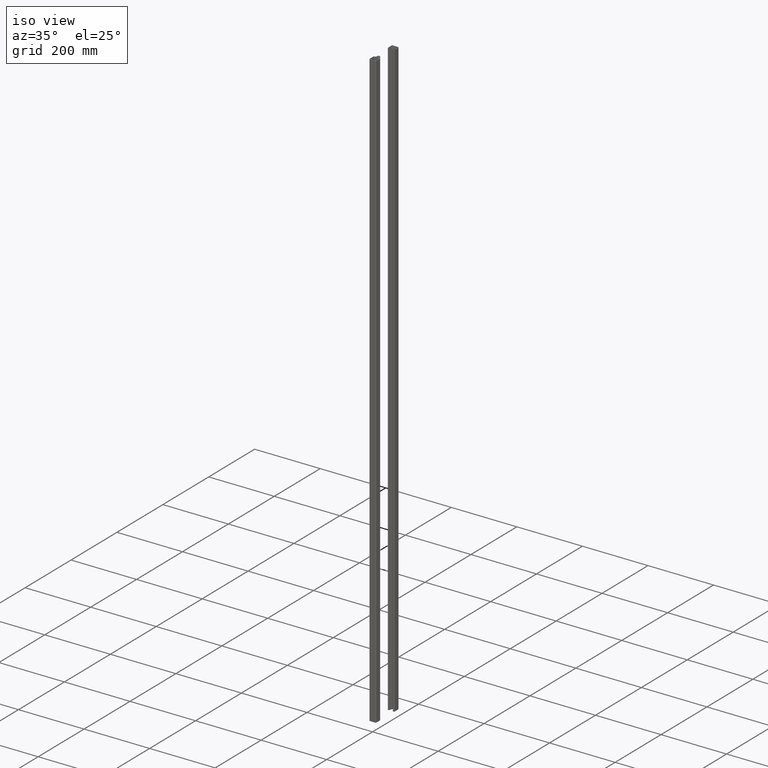
[diagram: clean part render]
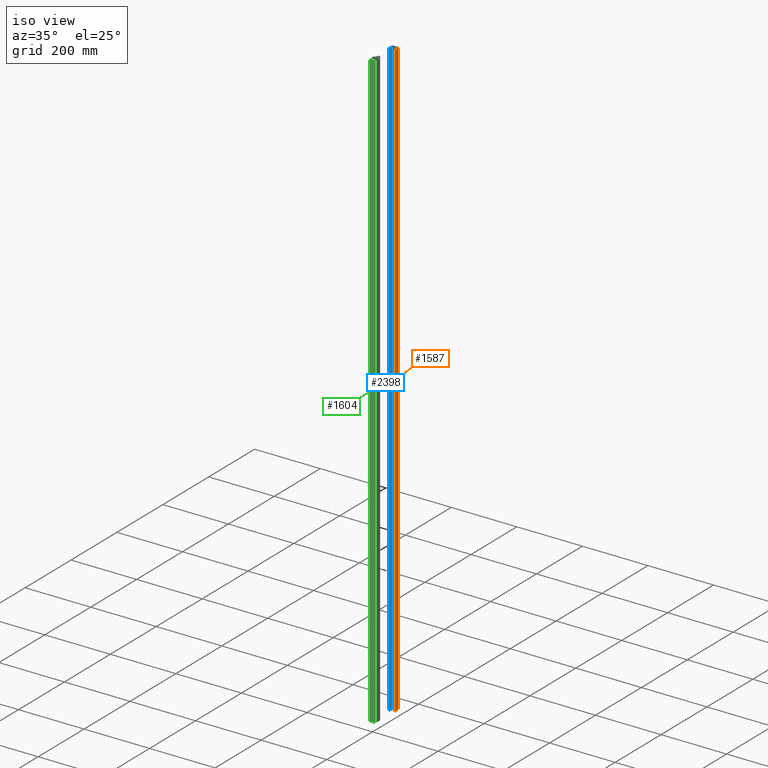
[diagram: same view with three faces highlighted in distinct colors, each labeled with its STEP entity id]
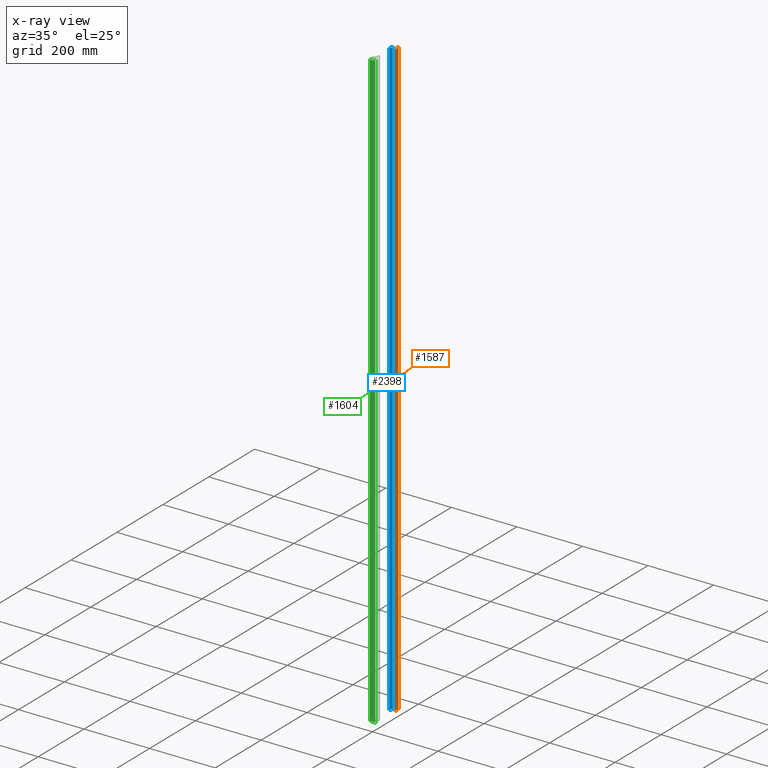
[diagram: x-ray of the same camera — body ghosted, the three highlighted faces saturated]
A machine part, iso view with three faces highlighted in distinct colors.
The next image is the same camera in x-ray (body ghosted, the three faces saturated) — at least one of them is partly hidden behind the body in this view.
Their STEP definitions:

[orange] entity #1587 — the highlighted planar face has unit normal (1, -0, 0).
#115 = PLANE ( 'NONE',  #2456 ) ;
#242 = ORIENTED_EDGE ( 'NONE', *, *, #848, .F. ) ;
#312 = CARTESIAN_POINT ( 'NONE',  ( 10.30000000000000071, 18.00000000000000355, -1825.000000000000000 ) ) ;
#400 = EDGE_CURVE ( 'NONE', #912, #1763, #1383, .T. ) ;
#407 = CARTESIAN_POINT ( 'NONE',  ( 10.30000000000000071, 2.000000000000000000, -1825.000000000000000 ) ) ;
#454 = LINE ( 'NONE', #1557, #961 ) ;
#504 = VECTOR ( 'NONE', #1680, 1000.000000000000000 ) ;
#532 = VERTEX_POINT ( 'NONE', #312 ) ;
#598 = LINE ( 'NONE', #2133, #2364 ) ;
#848 = EDGE_CURVE ( 'NONE', #1763, #1404, #1472, .T. ) ;
#895 = CARTESIAN_POINT ( 'NONE',  ( 10.30000000000000071, 2.000000000000000000, -1825.000000000000000 ) ) ;
#898 = DIRECTION ( 'NONE',  ( 1.000000000000000000, 0.000000000000000000, -0.000000000000000000 ) ) ;
#912 = VERTEX_POINT ( 'NONE', #895 ) ;
#961 = VECTOR ( 'NONE', #1234, 1000.000000000000000 ) ;
#986 = DIRECTION ( 'NONE',  ( -0.000000000000000000, 1.000000000000000000, -0.000000000000000000 ) ) ;
#1234 = DIRECTION ( 'NONE',  ( 0.000000000000000000, 0.000000000000000000, 1.000000000000000000 ) ) ;
#1266 = ORIENTED_EDGE ( 'NONE', *, *, #1463, .T. ) ;
#1276 = ORIENTED_EDGE ( 'NONE', *, *, #400, .F. ) ;
#1383 = LINE ( 'NONE', #407, #504 ) ;
#1404 = VERTEX_POINT ( 'NONE', #1425 ) ;
#1425 = CARTESIAN_POINT ( 'NONE',  ( 10.30000000000000071, 18.00000000000000355, 0.000000000000000000 ) ) ;
#1434 = DIRECTION ( 'NONE',  ( -0.000000000000000000, 1.000000000000000000, -0.000000000000000000 ) ) ;
#1463 = EDGE_CURVE ( 'NONE', #912, #532, #598, .T. ) ;
#1472 = LINE ( 'NONE', #2388, #1677 ) ;
#1557 = CARTESIAN_POINT ( 'NONE',  ( 10.30000000000000071, 18.00000000000000355, -1825.000000000000000 ) ) ;
#1587 = ADVANCED_FACE ( 'NONE', ( #1871 ), #115, .T. ) ;
#1677 = VECTOR ( 'NONE', #1434, 1000.000000000000000 ) ;
#1680 = DIRECTION ( 'NONE',  ( 0.000000000000000000, 0.000000000000000000, 1.000000000000000000 ) ) ;
#1763 = VERTEX_POINT ( 'NONE', #2167 ) ;
#1792 = EDGE_CURVE ( 'NONE', #532, #1404, #454, .T. ) ;
#1802 = EDGE_LOOP ( 'NONE', ( #242, #1276, #1266, #2422 ) ) ;
#1871 = FACE_OUTER_BOUND ( 'NONE', #1802, .T. ) ;
#1887 = DIRECTION ( 'NONE',  ( -0.000000000000000000, 0.000000000000000000, -1.000000000000000000 ) ) ;
#2133 = CARTESIAN_POINT ( 'NONE',  ( 10.30000000000000071, 18.00000000000000355, -1825.000000000000000 ) ) ;
#2167 = CARTESIAN_POINT ( 'NONE',  ( 10.30000000000000071, 2.000000000000000000, 0.000000000000000000 ) ) ;
#2233 = CARTESIAN_POINT ( 'NONE',  ( 10.30000000000000071, 18.00000000000000355, -1825.000000000000000 ) ) ;
#2364 = VECTOR ( 'NONE', #986, 1000.000000000000000 ) ;
#2388 = CARTESIAN_POINT ( 'NONE',  ( 10.30000000000000071, 18.00000000000000355, 0.000000000000000000 ) ) ;
#2422 = ORIENTED_EDGE ( 'NONE', *, *, #1792, .T. ) ;
#2456 = AXIS2_PLACEMENT_3D ( 'NONE', #2233, #898, #1887 ) ;

[blue] entity #2398 — the highlighted planar face has unit normal (0.9511, -0.309, 0).
#57 = VECTOR ( 'NONE', #2430, 1000.000000000000000 ) ;
#71 = LINE ( 'NONE', #1632, #910 ) ;
#320 = EDGE_CURVE ( 'NONE', #1821, #1328, #364, .T. ) ;
#364 = LINE ( 'NONE', #1862, #1198 ) ;
#534 = CARTESIAN_POINT ( 'NONE',  ( -5.799999999999999822, 19.44721359549996720, -1825.000000000000000 ) ) ;
#574 = DIRECTION ( 'NONE',  ( 0.9510565162951523099, 0.3090169943749515036, -0.000000000000000000 ) ) ;
#618 = DIRECTION ( 'NONE',  ( -0.3090169943749515036, 0.9510565162951523099, -0.000000000000000000 ) ) ;
#818 = CARTESIAN_POINT ( 'NONE',  ( -5.799999999999999822, 19.44721359549996720, 0.000000000000000000 ) ) ;
#845 = CARTESIAN_POINT ( 'NONE',  ( -2.243034683953356367, 8.500000000000000000, -1825.000000000000000 ) ) ;
#853 = EDGE_CURVE ( 'NONE', #1961, #1821, #71, .T. ) ;
#910 = VECTOR ( 'NONE', #2400, 1000.000000000000000 ) ;
#931 = EDGE_CURVE ( 'NONE', #1961, #1998, #1659, .T. ) ;
#998 = CARTESIAN_POINT ( 'NONE',  ( -5.799999999999999822, 19.44721359549996720, -1825.000000000000000 ) ) ;
#1106 = PLANE ( 'NONE',  #1127 ) ;
#1112 = DIRECTION ( 'NONE',  ( 0.000000000000000000, 0.000000000000000000, 1.000000000000000000 ) ) ;
#1127 = AXIS2_PLACEMENT_3D ( 'NONE', #534, #574, #2099 ) ;
#1151 = EDGE_CURVE ( 'NONE', #1998, #1328, #1193, .T. ) ;
#1165 = VECTOR ( 'NONE', #618, 1000.000000000000000 ) ;
#1193 = LINE ( 'NONE', #1555, #1165 ) ;
#1198 = VECTOR ( 'NONE', #1112, 1000.000000000000000 ) ;
#1328 = VERTEX_POINT ( 'NONE', #818 ) ;
#1503 = ORIENTED_EDGE ( 'NONE', *, *, #931, .F. ) ;
#1504 = FACE_OUTER_BOUND ( 'NONE', #2465, .T. ) ;
#1506 = CARTESIAN_POINT ( 'NONE',  ( -2.243034683953356367, 8.500000000000000000, -1825.000000000000000 ) ) ;
#1518 = CARTESIAN_POINT ( 'NONE',  ( -2.243034683953356367, 8.500000000000000000, 0.000000000000000000 ) ) ;
#1555 = CARTESIAN_POINT ( 'NONE',  ( -5.799999999999999822, 19.44721359549996720, 0.000000000000000000 ) ) ;
#1632 = CARTESIAN_POINT ( 'NONE',  ( -5.799999999999999822, 19.44721359549996720, -1825.000000000000000 ) ) ;
#1659 = LINE ( 'NONE', #845, #57 ) ;
#1750 = ORIENTED_EDGE ( 'NONE', *, *, #1151, .F. ) ;
#1821 = VERTEX_POINT ( 'NONE', #998 ) ;
#1862 = CARTESIAN_POINT ( 'NONE',  ( -5.799999999999999822, 19.44721359549996720, -1825.000000000000000 ) ) ;
#1879 = ORIENTED_EDGE ( 'NONE', *, *, #853, .T. ) ;
#1961 = VERTEX_POINT ( 'NONE', #1506 ) ;
#1998 = VERTEX_POINT ( 'NONE', #1518 ) ;
#2097 = ORIENTED_EDGE ( 'NONE', *, *, #320, .T. ) ;
#2099 = DIRECTION ( 'NONE',  ( -0.3090169943749515036, 0.9510565162951523099, 0.000000000000000000 ) ) ;
#2398 = ADVANCED_FACE ( 'NONE', ( #1504 ), #1106, .T. ) ;
#2400 = DIRECTION ( 'NONE',  ( -0.3090169943749515036, 0.9510565162951523099, -0.000000000000000000 ) ) ;
#2430 = DIRECTION ( 'NONE',  ( 0.000000000000000000, 0.000000000000000000, 1.000000000000000000 ) ) ;
#2465 = EDGE_LOOP ( 'NONE', ( #1750, #1503, #1879, #2097 ) ) ;

[green] entity #1604 — the highlighted planar face has unit normal (0, -1, 0).
#6 = VERTEX_POINT ( 'NONE', #1346 ) ;
#89 = LINE ( 'NONE', #157, #949 ) ;
#157 = CARTESIAN_POINT ( 'NONE',  ( -8.300000000000000711, 0.000000000000000000, 0.000000000000000000 ) ) ;
#201 = EDGE_CURVE ( 'NONE', #6, #733, #89, .T. ) ;
#244 = EDGE_CURVE ( 'NONE', #2444, #1716, #1339, .T. ) ;
#339 = DIRECTION ( 'NONE',  ( 0.000000000000000000, -0.000000000000000000, -1.000000000000000000 ) ) ;
#353 = VECTOR ( 'NONE', #1718, 1000.000000000000000 ) ;
#358 = ORIENTED_EDGE ( 'NONE', *, *, #2119, .F. ) ;
#378 = EDGE_LOOP ( 'NONE', ( #1026, #358, #395, #1529 ) ) ;
#395 = ORIENTED_EDGE ( 'NONE', *, *, #244, .T. ) ;
#450 = CARTESIAN_POINT ( 'NONE',  ( -8.300000000000000711, 0.000000000000000000, -1825.000000000000000 ) ) ;
#732 = CARTESIAN_POINT ( 'NONE',  ( -8.300000000000000711, 0.000000000000000000, -1825.000000000000000 ) ) ;
#733 = VERTEX_POINT ( 'NONE', #1608 ) ;
#775 = DIRECTION ( 'NONE',  ( 0.000000000000000000, 0.000000000000000000, 1.000000000000000000 ) ) ;
#824 = LINE ( 'NONE', #450, #1612 ) ;
#914 = AXIS2_PLACEMENT_3D ( 'NONE', #1921, #926, #339 ) ;
#926 = DIRECTION ( 'NONE',  ( 0.000000000000000000, -1.000000000000000000, 0.000000000000000000 ) ) ;
#937 = DIRECTION ( 'NONE',  ( 1.000000000000000000, 0.000000000000000000, 0.000000000000000000 ) ) ;
#942 = LINE ( 'NONE', #1305, #353 ) ;
#949 = VECTOR ( 'NONE', #2256, 1000.000000000000000 ) ;
#954 = CARTESIAN_POINT ( 'NONE',  ( -8.300000000000000711, 0.000000000000000000, -1825.000000000000000 ) ) ;
#1026 = ORIENTED_EDGE ( 'NONE', *, *, #201, .F. ) ;
#1174 = CARTESIAN_POINT ( 'NONE',  ( 8.300000000000000711, 8.673617379884035472E-16, -1825.000000000000000 ) ) ;
#1305 = CARTESIAN_POINT ( 'NONE',  ( 8.300000000000000711, 8.673617379884035472E-16, -1825.000000000000000 ) ) ;
#1339 = LINE ( 'NONE', #732, #1599 ) ;
#1346 = CARTESIAN_POINT ( 'NONE',  ( -8.300000000000000711, 0.000000000000000000, 0.000000000000000000 ) ) ;
#1529 = ORIENTED_EDGE ( 'NONE', *, *, #2490, .T. ) ;
#1599 = VECTOR ( 'NONE', #937, 1000.000000000000000 ) ;
#1604 = ADVANCED_FACE ( 'NONE', ( #1912 ), #1724, .T. ) ;
#1608 = CARTESIAN_POINT ( 'NONE',  ( 8.300000000000000711, 8.673617379884035472E-16, 0.000000000000000000 ) ) ;
#1612 = VECTOR ( 'NONE', #775, 1000.000000000000000 ) ;
#1716 = VERTEX_POINT ( 'NONE', #1174 ) ;
#1718 = DIRECTION ( 'NONE',  ( 0.000000000000000000, 0.000000000000000000, 1.000000000000000000 ) ) ;
#1724 = PLANE ( 'NONE',  #914 ) ;
#1912 = FACE_OUTER_BOUND ( 'NONE', #378, .T. ) ;
#1921 = CARTESIAN_POINT ( 'NONE',  ( -8.300000000000000711, 0.000000000000000000, -1825.000000000000000 ) ) ;
#2119 = EDGE_CURVE ( 'NONE', #2444, #6, #824, .T. ) ;
#2256 = DIRECTION ( 'NONE',  ( 1.000000000000000000, 0.000000000000000000, 0.000000000000000000 ) ) ;
#2444 = VERTEX_POINT ( 'NONE', #954 ) ;
#2490 = EDGE_CURVE ( 'NONE', #1716, #733, #942, .T. ) ;